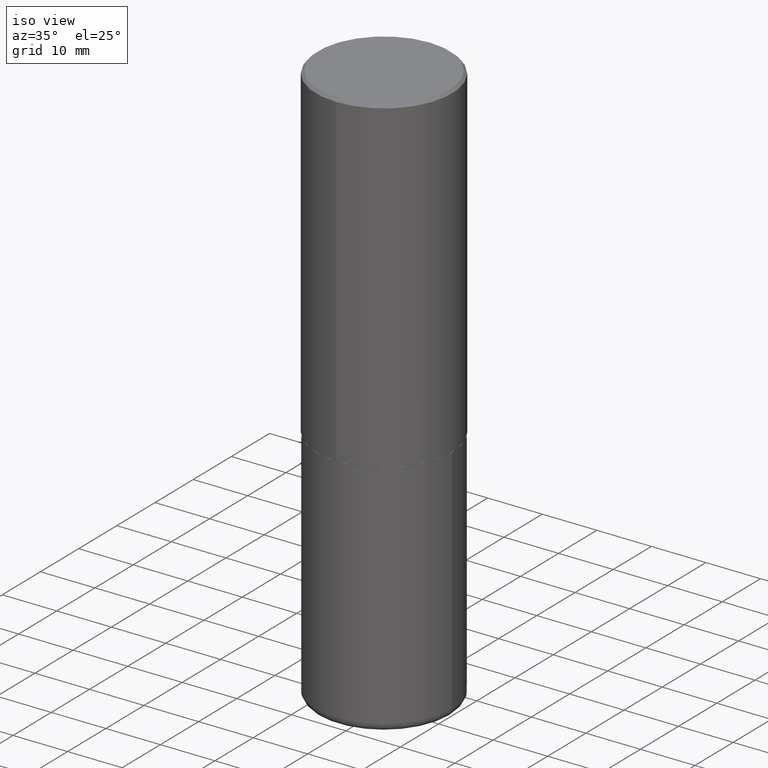
[diagram: clean part render]
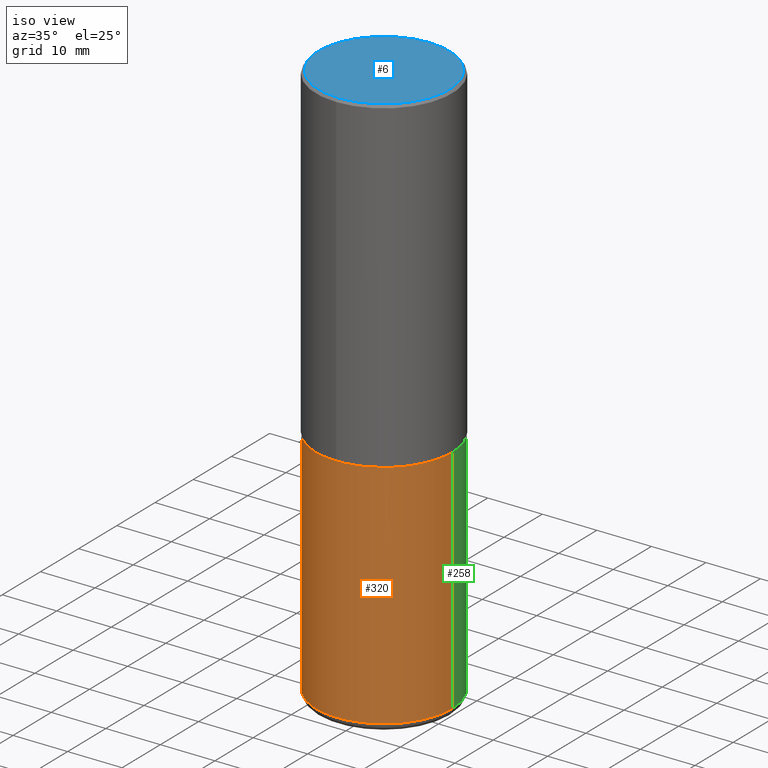
[diagram: same view with three faces highlighted in distinct colors, each labeled with its STEP entity id]
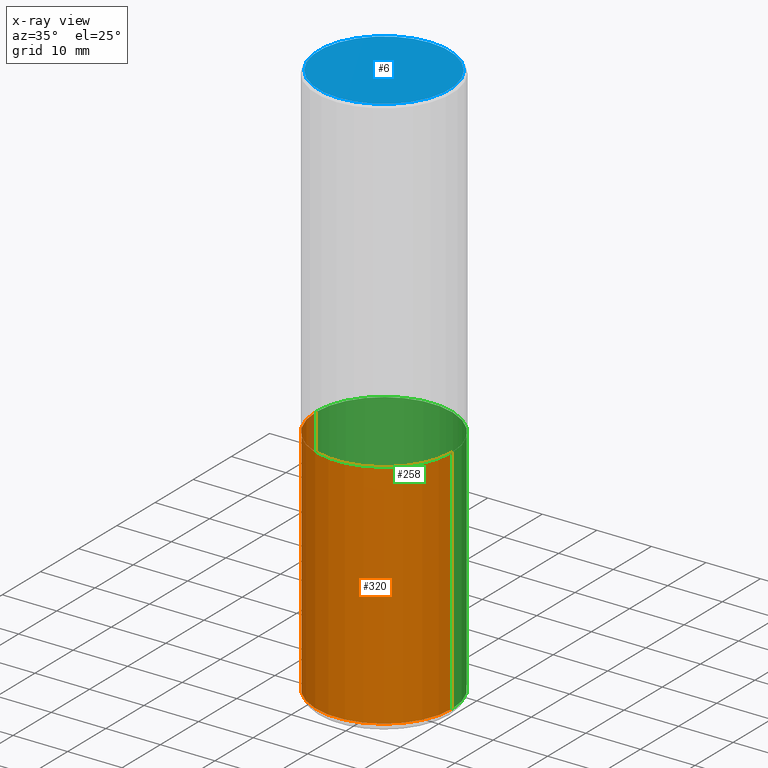
[diagram: x-ray of the same camera — body ghosted, the three highlighted faces saturated]
A machine part, iso view with three faces highlighted in distinct colors.
The next image is the same camera in x-ray (body ghosted, the three faces saturated) — at least one of them is partly hidden behind the body in this view.
Their STEP definitions:

[orange] entity #320 — the highlighted cylindrical surface (partial cylindrical patch) has radius 12.5006 mm, axis along (-0, 0, 1).
#13 = EDGE_CURVE ( 'NONE', #357, #223, #204, .T. ) ;
#28 = DIRECTION ( 'NONE',  ( -2.445468806185136877E-29, 3.491481338843145188E-15, 1.000000000000000000 ) ) ;
#55 = DIRECTION ( 'NONE',  ( 1.000000000000000000, -6.982962677686265922E-15, 4.876176775795935793E-29 ) ) ;
#61 = CARTESIAN_POINT ( 'NONE',  ( 0.4921500000000000874, -1.752374483965373598E-14, -4.034700000000000841 ) ) ;
#63 = LINE ( 'NONE', #314, #216 ) ;
#66 = CIRCLE ( 'NONE', #409, 0.4921500000000000319 ) ;
#88 = ORIENTED_EDGE ( 'NONE', *, *, #13, .F. ) ;
#102 = EDGE_CURVE ( 'NONE', #357, #289, #66, .T. ) ;
#116 = CARTESIAN_POINT ( 'NONE',  ( 5.776686413970530874E-29, -8.247577218615279626E-15, -2.362200000000000077 ) ) ;
#124 = CYLINDRICAL_SURFACE ( 'NONE', #301, 0.4921499999999999764 ) ;
#143 = DIRECTION ( 'NONE',  ( -2.445468806185136597E-29, 3.491481338843145583E-15, 1.000000000000000000 ) ) ;
#162 = ORIENTED_EDGE ( 'NONE', *, *, #263, .F. ) ;
#169 = CARTESIAN_POINT ( 'NONE',  ( 9.866732992315171563E-29, -1.408707975783044020E-14, -4.034700000000000841 ) ) ;
#192 = AXIS2_PLACEMENT_3D ( 'NONE', #116, #371, #196 ) ;
#195 = ORIENTED_EDGE ( 'NONE', *, *, #245, .T. ) ;
#196 = DIRECTION ( 'NONE',  ( 1.000000000000000000, -6.982962677686263555E-15, 0.000000000000000000 ) ) ;
#204 = LINE ( 'NONE', #299, #243 ) ;
#215 = FACE_OUTER_BOUND ( 'NONE', #310, .T. ) ;
#216 = VECTOR ( 'NONE', #28, 39.37007874015748143 ) ;
#223 = VERTEX_POINT ( 'NONE', #307 ) ;
#243 = VECTOR ( 'NONE', #265, 39.37007874015748143 ) ;
#245 = EDGE_CURVE ( 'NONE', #289, #352, #63, .T. ) ;
#248 = CARTESIAN_POINT ( 'NONE',  ( -0.4921500000000000874, -1.059014368378710651E-14, -4.034700000000000841 ) ) ;
#263 = EDGE_CURVE ( 'NONE', #223, #352, #367, .T. ) ;
#265 = DIRECTION ( 'NONE',  ( -2.445468806185136877E-29, 3.491481338843145188E-15, 1.000000000000000000 ) ) ;
#274 = CARTESIAN_POINT ( 'NONE',  ( 0.4921499999999999764, -1.168424230043857383E-14, -2.362200000000000077 ) ) ;
#276 = CARTESIAN_POINT ( 'NONE',  ( 0.000000000000000000, 0.000000000000000000, 0.000000000000000000 ) ) ;
#289 = VERTEX_POINT ( 'NONE', #61 ) ;
#299 = CARTESIAN_POINT ( 'NONE',  ( -0.4921499999999999764, 3.496936074043332897E-15, -2.420853904668951509E-29 ) ) ;
#301 = AXIS2_PLACEMENT_3D ( 'NONE', #276, #415, #55 ) ;
#307 = CARTESIAN_POINT ( 'NONE',  ( -0.4921499999999999764, -7.670392414179527805E-15, -2.362200000000000077 ) ) ;
#310 = EDGE_LOOP ( 'NONE', ( #88, #384, #195, #162 ) ) ;
#314 = CARTESIAN_POINT ( 'NONE',  ( 0.4921499999999999764, -3.436665081823295777E-15, 2.399810400207969603E-29 ) ) ;
#320 = ADVANCED_FACE ( 'NONE', ( #215 ), #124, .T. ) ;
#352 = VERTEX_POINT ( 'NONE', #274 ) ;
#357 = VERTEX_POINT ( 'NONE', #248 ) ;
#367 = CIRCLE ( 'NONE', #192, 0.4921499999999999764 ) ;
#371 = DIRECTION ( 'NONE',  ( -2.445468806185136597E-29, 3.491481338843145583E-15, 1.000000000000000000 ) ) ;
#373 = DIRECTION ( 'NONE',  ( 1.000000000000000000, -6.982962677686265133E-15, 0.000000000000000000 ) ) ;
#384 = ORIENTED_EDGE ( 'NONE', *, *, #102, .T. ) ;
#409 = AXIS2_PLACEMENT_3D ( 'NONE', #169, #143, #373 ) ;
#415 = DIRECTION ( 'NONE',  ( -2.445468806185136597E-29, 3.491481338843145583E-15, 1.000000000000000000 ) ) ;

[blue] entity #6 — the highlighted planar face has unit normal (0, -0, -1).
#6 = ADVANCED_FACE ( 'NONE', ( #199 ), #342, .F. ) ;
#7 = DIRECTION ( 'NONE',  ( -2.447678359454775616E-29, 3.488317132801060457E-15, 1.000000000000000000 ) ) ;
#24 = DIRECTION ( 'NONE',  ( -2.447678359454775616E-29, 3.488317132801060457E-15, 1.000000000000000000 ) ) ;
#25 = CARTESIAN_POINT ( 'NONE',  ( 3.366835455046433267E-15, 0.4721500000000000696, -1.742410188917000288E-15 ) ) ;
#59 = AXIS2_PLACEMENT_3D ( 'NONE', #110, #399, #369 ) ;
#70 = VERTEX_POINT ( 'NONE', #242 ) ;
#74 = AXIS2_PLACEMENT_3D ( 'NONE', #385, #7, #283 ) ;
#110 = CARTESIAN_POINT ( 'NONE',  ( 3.297005828269570364E-15, 0.4721500000000000696, -1.694709561584510512E-15 ) ) ;
#126 = ORIENTED_EDGE ( 'NONE', *, *, #328, .T. ) ;
#181 = CIRCLE ( 'NONE', #264, 0.4721500000000000696 ) ;
#182 = VERTEX_POINT ( 'NONE', #25 ) ;
#199 = FACE_OUTER_BOUND ( 'NONE', #318, .T. ) ;
#242 = CARTESIAN_POINT ( 'NONE',  ( -3.307789109625543325E-15, -0.4721500000000000696, 1.551607679587041380E-15 ) ) ;
#246 = CIRCLE ( 'NONE', #74, 0.4721500000000000696 ) ;
#264 = AXIS2_PLACEMENT_3D ( 'NONE', #304, #24, #377 ) ;
#283 = DIRECTION ( 'NONE',  ( -6.982962677686264344E-15, -1.000000000000000000, 3.488317132801060062E-15 ) ) ;
#304 = CARTESIAN_POINT ( 'NONE',  ( 2.335115865083042491E-45, -3.327898311385650714E-31, -9.540125466497949090E-17 ) ) ;
#318 = EDGE_LOOP ( 'NONE', ( #390, #126 ) ) ;
#328 = EDGE_CURVE ( 'NONE', #70, #182, #181, .T. ) ;
#342 = PLANE ( 'NONE',  #59 ) ;
#369 = DIRECTION ( 'NONE',  ( 6.982962677686265922E-15, 1.000000000000000000, -3.488317132801060062E-15 ) ) ;
#377 = DIRECTION ( 'NONE',  ( -6.982962677686264344E-15, -1.000000000000000000, 3.488317132801060062E-15 ) ) ;
#385 = CARTESIAN_POINT ( 'NONE',  ( 2.335115865083042491E-45, -3.327898311385650714E-31, -9.540125466497949090E-17 ) ) ;
#390 = ORIENTED_EDGE ( 'NONE', *, *, #412, .T. ) ;
#399 = DIRECTION ( 'NONE',  ( 2.447678359454775616E-29, -3.488317132801060062E-15, -1.000000000000000000 ) ) ;
#412 = EDGE_CURVE ( 'NONE', #182, #70, #246, .T. ) ;

[green] entity #258 — the highlighted cylindrical surface (partial cylindrical patch) has radius 12.5006 mm, axis along (-0, 0, 1).
#2 = ORIENTED_EDGE ( 'NONE', *, *, #113, .T. ) ;
#13 = EDGE_CURVE ( 'NONE', #357, #223, #204, .T. ) ;
#28 = DIRECTION ( 'NONE',  ( -2.445468806185136877E-29, 3.491481338843145188E-15, 1.000000000000000000 ) ) ;
#47 = DIRECTION ( 'NONE',  ( -2.445468806185136597E-29, 3.491481338843145583E-15, 1.000000000000000000 ) ) ;
#49 = DIRECTION ( 'NONE',  ( 1.000000000000000000, -6.982962677686265133E-15, 0.000000000000000000 ) ) ;
#53 = CARTESIAN_POINT ( 'NONE',  ( 5.776686413970530874E-29, -8.247577218615279626E-15, -2.362200000000000077 ) ) ;
#61 = CARTESIAN_POINT ( 'NONE',  ( 0.4921500000000000874, -1.752374483965373598E-14, -4.034700000000000841 ) ) ;
#63 = LINE ( 'NONE', #314, #216 ) ;
#78 = DIRECTION ( 'NONE',  ( 1.000000000000000000, -6.982962677686265922E-15, 4.876176775795935793E-29 ) ) ;
#80 = CIRCLE ( 'NONE', #309, 0.4921499999999999764 ) ;
#94 = EDGE_CURVE ( 'NONE', #352, #223, #80, .T. ) ;
#113 = EDGE_CURVE ( 'NONE', #289, #357, #396, .T. ) ;
#144 = CYLINDRICAL_SURFACE ( 'NONE', #287, 0.4921499999999999764 ) ;
#204 = LINE ( 'NONE', #299, #243 ) ;
#216 = VECTOR ( 'NONE', #28, 39.37007874015748143 ) ;
#222 = AXIS2_PLACEMENT_3D ( 'NONE', #305, #241, #49 ) ;
#223 = VERTEX_POINT ( 'NONE', #307 ) ;
#236 = EDGE_LOOP ( 'NONE', ( #2, #321, #290, #392 ) ) ;
#241 = DIRECTION ( 'NONE',  ( -2.445468806185136597E-29, 3.491481338843145583E-15, 1.000000000000000000 ) ) ;
#243 = VECTOR ( 'NONE', #265, 39.37007874015748143 ) ;
#245 = EDGE_CURVE ( 'NONE', #289, #352, #63, .T. ) ;
#248 = CARTESIAN_POINT ( 'NONE',  ( -0.4921500000000000874, -1.059014368378710651E-14, -4.034700000000000841 ) ) ;
#258 = ADVANCED_FACE ( 'NONE', ( #302 ), #144, .T. ) ;
#265 = DIRECTION ( 'NONE',  ( -2.445468806185136877E-29, 3.491481338843145188E-15, 1.000000000000000000 ) ) ;
#274 = CARTESIAN_POINT ( 'NONE',  ( 0.4921499999999999764, -1.168424230043857383E-14, -2.362200000000000077 ) ) ;
#287 = AXIS2_PLACEMENT_3D ( 'NONE', #406, #365, #78 ) ;
#289 = VERTEX_POINT ( 'NONE', #61 ) ;
#290 = ORIENTED_EDGE ( 'NONE', *, *, #94, .F. ) ;
#299 = CARTESIAN_POINT ( 'NONE',  ( -0.4921499999999999764, 3.496936074043332897E-15, -2.420853904668951509E-29 ) ) ;
#302 = FACE_OUTER_BOUND ( 'NONE', #236, .T. ) ;
#303 = DIRECTION ( 'NONE',  ( 1.000000000000000000, -6.982962677686263555E-15, 0.000000000000000000 ) ) ;
#305 = CARTESIAN_POINT ( 'NONE',  ( 9.866732992315171563E-29, -1.408707975783044020E-14, -4.034700000000000841 ) ) ;
#307 = CARTESIAN_POINT ( 'NONE',  ( -0.4921499999999999764, -7.670392414179527805E-15, -2.362200000000000077 ) ) ;
#309 = AXIS2_PLACEMENT_3D ( 'NONE', #53, #47, #303 ) ;
#314 = CARTESIAN_POINT ( 'NONE',  ( 0.4921499999999999764, -3.436665081823295777E-15, 2.399810400207969603E-29 ) ) ;
#321 = ORIENTED_EDGE ( 'NONE', *, *, #13, .T. ) ;
#352 = VERTEX_POINT ( 'NONE', #274 ) ;
#357 = VERTEX_POINT ( 'NONE', #248 ) ;
#365 = DIRECTION ( 'NONE',  ( -2.445468806185136597E-29, 3.491481338843145583E-15, 1.000000000000000000 ) ) ;
#392 = ORIENTED_EDGE ( 'NONE', *, *, #245, .F. ) ;
#396 = CIRCLE ( 'NONE', #222, 0.4921500000000000319 ) ;
#406 = CARTESIAN_POINT ( 'NONE',  ( 0.000000000000000000, 0.000000000000000000, 0.000000000000000000 ) ) ;